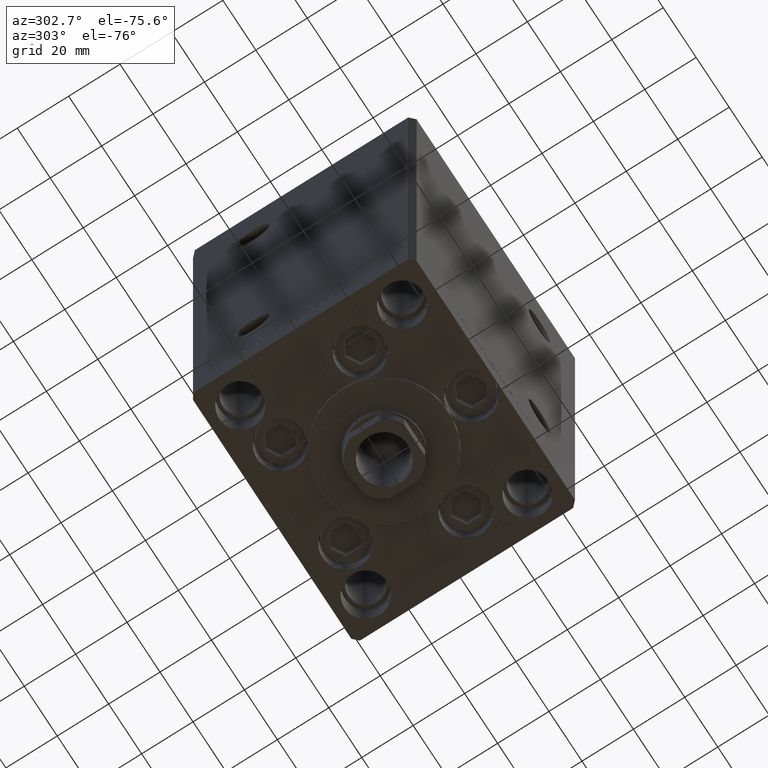
[diagram: clean part render]
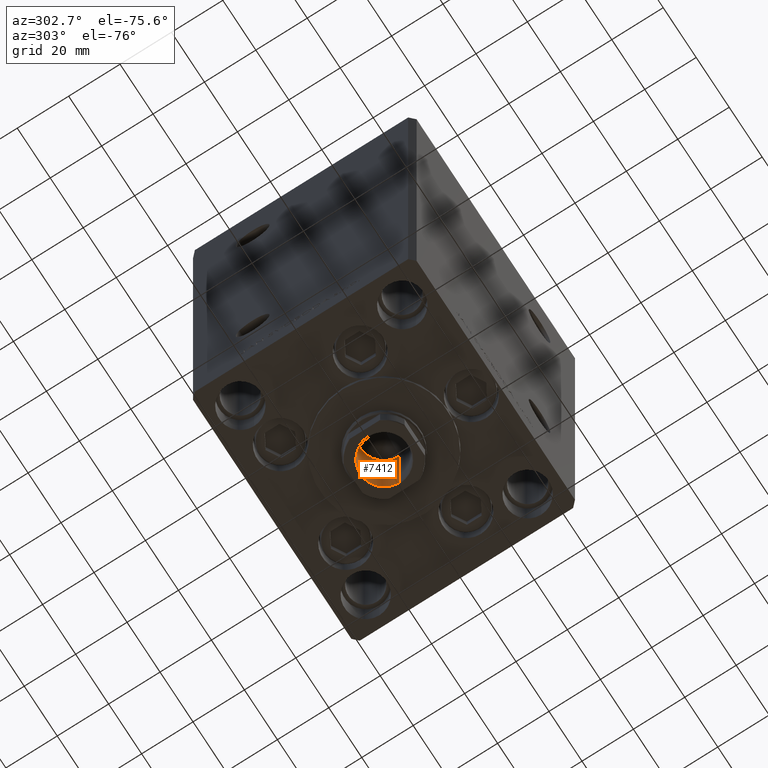
[diagram: same view with one face highlighted and labeled with its STEP entity id]
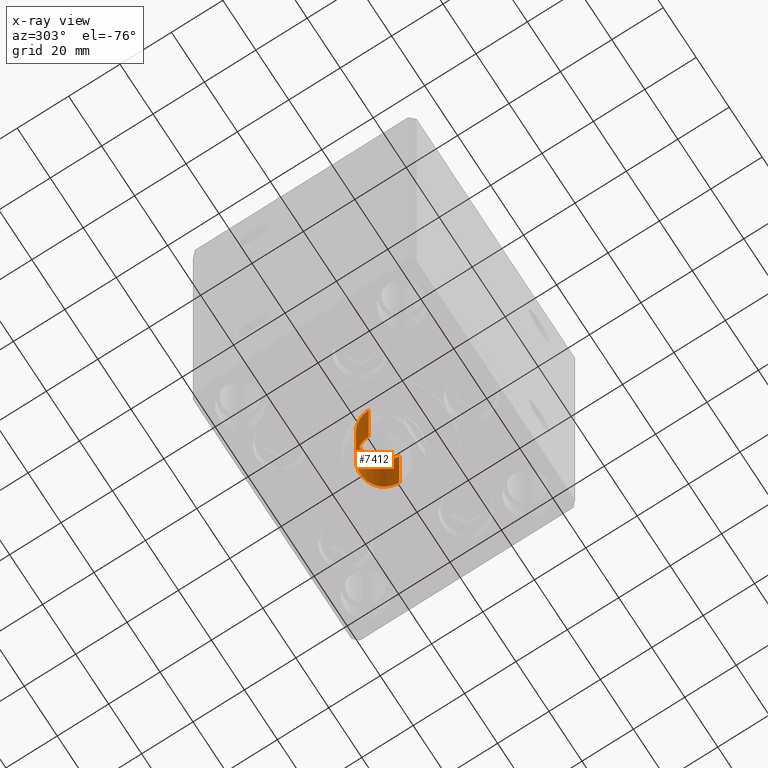
[diagram: x-ray of the same camera — body ghosted, the highlighted face saturated]
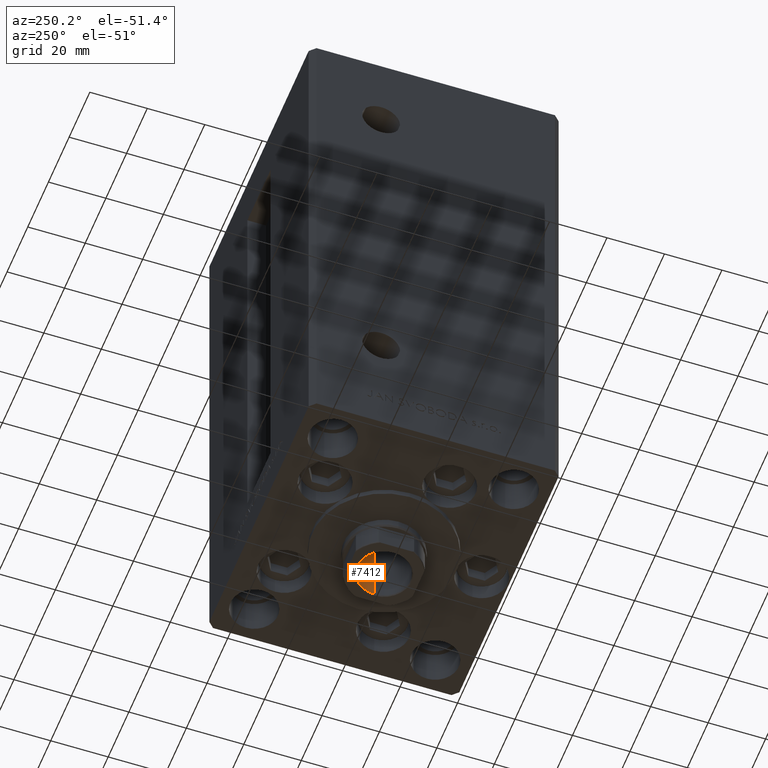
[diagram: same view with one face highlighted and labeled with its STEP entity id]
A machine part, auxiliary view. The second image highlights one B-rep face of the part: STEP entity #7412.
The next image is the same camera in x-ray: the body ghosted, the highlighted face saturated — about 0% of this face is hidden behind the body in this view.
A second angle (auxiliary view) of the same face is appended — the face is thin or edge-on in the first view.
In plain terms, the highlighted cylindrical surface (edge-blend (fillet) strip) has radius 9.25 mm, axis along (0, 0, -1).
Its self-contained STEP definition (entity closure, byte-faithful):
#3017 = DIRECTION ( 'NONE',  ( 1.000000000000000000, 0.000000000000000000, 0.000000000000000000 ) ) ;
#3895 = CARTESIAN_POINT ( 'NONE',  ( -9.249999999999994671, 1.132798289211300909E-15, 130.2500000000000000 ) ) ;
#3906 = CARTESIAN_POINT ( 'NONE',  ( -9.249999999999996447, 1.132798289211301304E-15, 165.2500000000000000 ) ) ;
#4252 = VECTOR ( 'NONE', #11774, 1000.000000000000000 ) ;
#7412 = ADVANCED_FACE ( 'NONE', ( #40613 ), #22077, .F. ) ;
#7945 = ORIENTED_EDGE ( 'NONE', *, *, #40312, .T. ) ;
#9507 = VERTEX_POINT ( 'NONE', #49836 ) ;
#9648 = VERTEX_POINT ( 'NONE', #3895 ) ;
#10614 = EDGE_CURVE ( 'NONE', #9648, #31353, #39432, .T. ) ;
#11774 = DIRECTION ( 'NONE',  ( -0.000000000000000000, -0.000000000000000000, 1.000000000000000000 ) ) ;
#12261 = DIRECTION ( 'NONE',  ( 1.000000000000000000, 0.000000000000000000, 0.000000000000000000 ) ) ;
#12496 = AXIS2_PLACEMENT_3D ( 'NONE', #38836, #14976, #46196 ) ;
#14799 = CARTESIAN_POINT ( 'NONE',  ( 9.249999999999996447, 0.000000000000000000, 165.2500000000000000 ) ) ;
#14911 = CIRCLE ( 'NONE', #12496, 9.249999999999996447 ) ;
#14976 = DIRECTION ( 'NONE',  ( 0.000000000000000000, 0.000000000000000000, 1.000000000000000000 ) ) ;
#15305 = CARTESIAN_POINT ( 'NONE',  ( 0.000000000000000000, 0.000000000000000000, 130.2500000000000000 ) ) ;
#16105 = EDGE_LOOP ( 'NONE', ( #39504, #30135, #7945, #18581 ) ) ;
#16459 = CIRCLE ( 'NONE', #44832, 9.249999999999994671 ) ;
#17086 = CARTESIAN_POINT ( 'NONE',  ( 9.249999999999996447, 0.000000000000000000, 164.9499999999999886 ) ) ;
#17767 = CARTESIAN_POINT ( 'NONE',  ( 0.000000000000000000, 0.000000000000000000, 165.2500000000000000 ) ) ;
#18581 = ORIENTED_EDGE ( 'NONE', *, *, #24846, .T. ) ;
#19619 = DIRECTION ( 'NONE',  ( -0.000000000000000000, -0.000000000000000000, 1.000000000000000000 ) ) ;
#21696 = EDGE_CURVE ( 'NONE', #9507, #9648, #16459, .T. ) ;
#22077 = CYLINDRICAL_SURFACE ( 'NONE', #22094, 9.249999999999996447 ) ;
#22094 = AXIS2_PLACEMENT_3D ( 'NONE', #17767, #36807, #3017 ) ;
#24846 = EDGE_CURVE ( 'NONE', #30011, #31353, #14911, .T. ) ;
#29908 = VECTOR ( 'NONE', #30027, 1000.000000000000000 ) ;
#30011 = VERTEX_POINT ( 'NONE', #17086 ) ;
#30027 = DIRECTION ( 'NONE',  ( -0.000000000000000000, -0.000000000000000000, 1.000000000000000000 ) ) ;
#30135 = ORIENTED_EDGE ( 'NONE', *, *, #21696, .F. ) ;
#31353 = VERTEX_POINT ( 'NONE', #41082 ) ;
#36807 = DIRECTION ( 'NONE',  ( -0.000000000000000000, -0.000000000000000000, 1.000000000000000000 ) ) ;
#38836 = CARTESIAN_POINT ( 'NONE',  ( 0.000000000000000000, 0.000000000000000000, 164.9499999999999886 ) ) ;
#39432 = LINE ( 'NONE', #3906, #4252 ) ;
#39504 = ORIENTED_EDGE ( 'NONE', *, *, #10614, .F. ) ;
#40312 = EDGE_CURVE ( 'NONE', #9507, #30011, #49329, .T. ) ;
#40613 = FACE_OUTER_BOUND ( 'NONE', #16105, .T. ) ;
#41082 = CARTESIAN_POINT ( 'NONE',  ( -9.249999999999996447, 1.132798289211301304E-15, 164.9499999999999886 ) ) ;
#44832 = AXIS2_PLACEMENT_3D ( 'NONE', #15305, #19619, #12261 ) ;
#46196 = DIRECTION ( 'NONE',  ( 1.000000000000000000, 0.000000000000000000, 0.000000000000000000 ) ) ;
#49329 = LINE ( 'NONE', #14799, #29908 ) ;
#49836 = CARTESIAN_POINT ( 'NONE',  ( 9.249999999999994671, 0.000000000000000000, 130.2500000000000000 ) ) ;